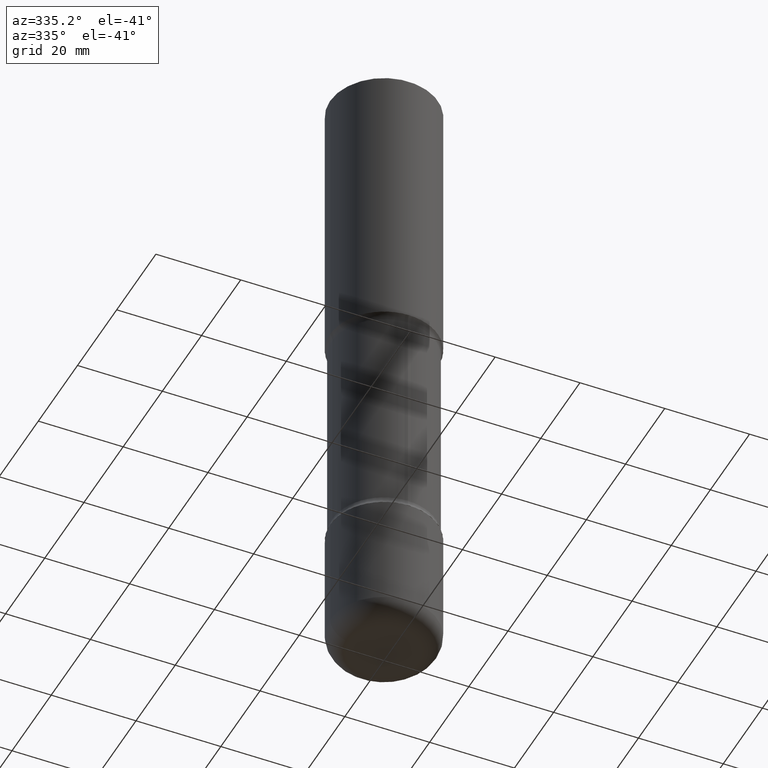
[diagram: clean part render]
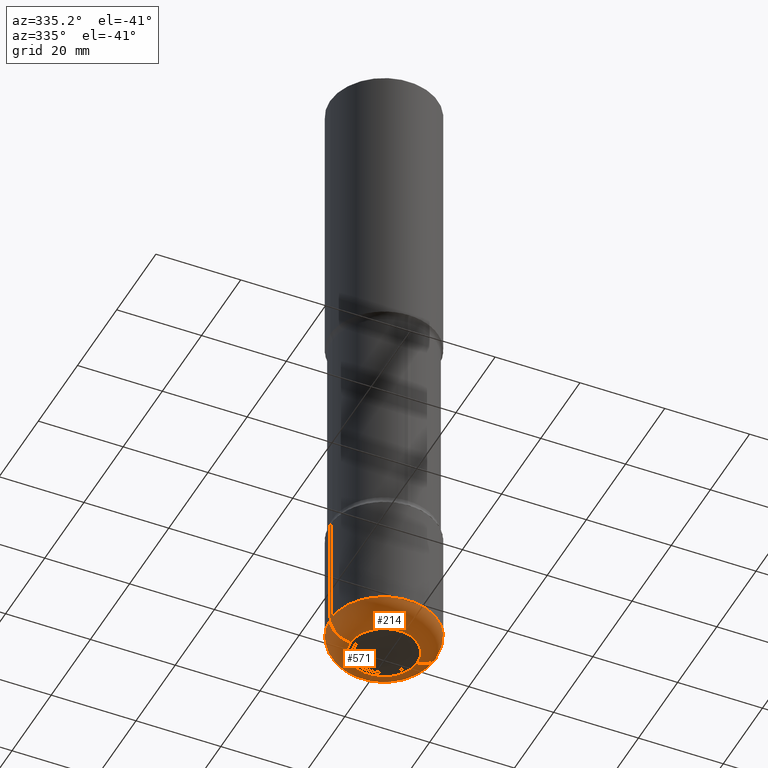
[diagram: same view with one multi-face feature highlighted, each face labeled with its STEP entity id]
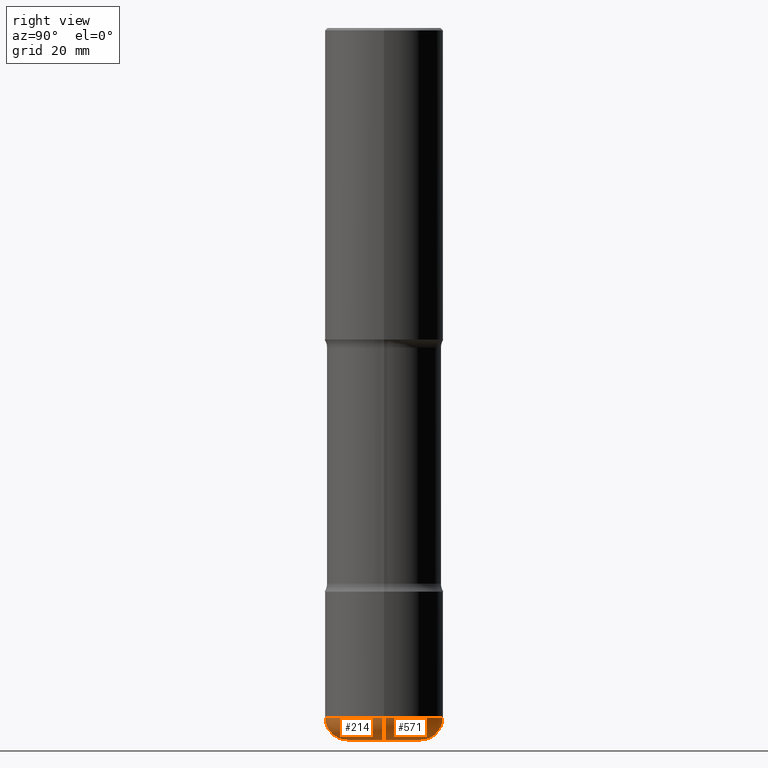
[diagram: same view with one multi-face feature highlighted, each face labeled with its STEP entity id]
A machine part, auxiliary view. The highlighted faces form ONE feature: a constant-radius fillet chain: 2 tangent blend faces with common blend radius 4.826 mm. The faces share edges in the B-rep.
A second angle (right view) of the same feature is appended — it is thin or edge-on in the first view.
Their STEP definitions:
[1] entity #214 (Torus):
#31 = DIRECTION ( 'NONE',  ( 1.000000000000000000, -6.982962677686265133E-15, 4.883557194083112340E-29 ) ) ;
#34 = AXIS2_PLACEMENT_3D ( 'NONE', #156, #81, #83 ) ;
#37 = EDGE_CURVE ( 'NONE', #120, #599, #371, .T. ) ;
#38 = CARTESIAN_POINT ( 'NONE',  ( -0.4999999999999996114, -1.673279289987817833E-14, -5.810000000000000497 ) ) ;
#53 = ORIENTED_EDGE ( 'NONE', *, *, #188, .T. ) ;
#81 = DIRECTION ( 'NONE',  ( -6.982962677686266711E-15, -1.000000000000000000, 3.491481338843145583E-15 ) ) ;
#83 = DIRECTION ( 'NONE',  ( 1.000000000000000000, -6.982962677686265133E-15, 0.000000000000000000 ) ) ;
#102 = CIRCLE ( 'NONE', #34, 0.1899999999999993361 ) ;
#120 = VERTEX_POINT ( 'NONE', #574 ) ;
#128 = VERTEX_POINT ( 'NONE', #691 ) ;
#156 = CARTESIAN_POINT ( 'NONE',  ( 0.3099999999999999978, -2.245022500876142257E-14, -5.810000000000000497 ) ) ;
#161 = FACE_OUTER_BOUND ( 'NONE', #330, .T. ) ;
#164 = CARTESIAN_POINT ( 'NONE',  ( 1.467281283711081734E-28, -2.094888803305886955E-14, -5.999999999999999112 ) ) ;
#169 = DIRECTION ( 'NONE',  ( 7.105427357601001859E-15, 1.000000000000000000, -3.491481338843145583E-15 ) ) ;
#188 = EDGE_CURVE ( 'NONE', #686, #128, #102, .T. ) ;
#194 = EDGE_CURVE ( 'NONE', #120, #686, #712, .T. ) ;
#202 = TOROIDAL_SURFACE ( 'NONE', #269, 0.3099999999999999978, 0.1899999999999993638 ) ;
#214 = ADVANCED_FACE ( 'NONE', ( #161 ), #202, .T. ) ;
#252 = ORIENTED_EDGE ( 'NONE', *, *, #194, .T. ) ;
#269 = AXIS2_PLACEMENT_3D ( 'NONE', #589, #450, #31 ) ;
#330 = EDGE_LOOP ( 'NONE', ( #647, #252, #53, #803 ) ) ;
#357 = AXIS2_PLACEMENT_3D ( 'NONE', #547, #169, #660 ) ;
#371 = CIRCLE ( 'NONE', #357, 0.1899999999999993361 ) ;
#447 = DIRECTION ( 'NONE',  ( 1.000000000000000000, -6.982962677686263555E-15, 0.000000000000000000 ) ) ;
#450 = DIRECTION ( 'NONE',  ( -2.445468806185136597E-29, 3.491481338843145583E-15, 1.000000000000000000 ) ) ;
#457 = DIRECTION ( 'NONE',  ( 1.000000000000000000, -6.982962677686262766E-15, 0.000000000000000000 ) ) ;
#519 = DIRECTION ( 'NONE',  ( -2.445468806185136597E-29, 3.491481338843145583E-15, 1.000000000000000000 ) ) ;
#531 = EDGE_CURVE ( 'NONE', #599, #128, #555, .T. ) ;
#535 = AXIS2_PLACEMENT_3D ( 'NONE', #757, #645, #447 ) ;
#547 = CARTESIAN_POINT ( 'NONE',  ( -0.3099999999999999978, -1.808282409782236831E-14, -5.810000000000000497 ) ) ;
#555 = CIRCLE ( 'NONE', #535, 0.4999999999999999445 ) ;
#574 = CARTESIAN_POINT ( 'NONE',  ( -0.3100000000000000533, -1.773949922604037162E-14, -5.999999999999999112 ) ) ;
#589 = CARTESIAN_POINT ( 'NONE',  ( 1.420817376393564695E-28, -2.028550657867867926E-14, -5.810000000000000497 ) ) ;
#599 = VERTEX_POINT ( 'NONE', #38 ) ;
#637 = AXIS2_PLACEMENT_3D ( 'NONE', #164, #519, #457 ) ;
#645 = DIRECTION ( 'NONE',  ( -2.445468806185136597E-29, 3.491481338843145583E-15, 1.000000000000000000 ) ) ;
#647 = ORIENTED_EDGE ( 'NONE', *, *, #37, .F. ) ;
#660 = DIRECTION ( 'NONE',  ( -1.000000000000000000, 7.105427357601001859E-15, 0.000000000000000000 ) ) ;
#686 = VERTEX_POINT ( 'NONE', #721 ) ;
#691 = CARTESIAN_POINT ( 'NONE',  ( 0.4999999999999996114, -2.377698791752180631E-14, -5.810000000000000497 ) ) ;
#712 = CIRCLE ( 'NONE', #637, 0.3100000000000000533 ) ;
#721 = CARTESIAN_POINT ( 'NONE',  ( 0.3100000000000000533, -2.311360646314161286E-14, -5.999999999999999112 ) ) ;
#757 = CARTESIAN_POINT ( 'NONE',  ( 1.420817376393564695E-28, -2.028550657867867926E-14, -5.810000000000000497 ) ) ;
#803 = ORIENTED_EDGE ( 'NONE', *, *, #531, .F. ) ;
[2] entity #571 (Torus):
#32 = DIRECTION ( 'NONE',  ( -2.445468806185136597E-29, 3.491481338843145583E-15, 1.000000000000000000 ) ) ;
#34 = AXIS2_PLACEMENT_3D ( 'NONE', #156, #81, #83 ) ;
#37 = EDGE_CURVE ( 'NONE', #120, #599, #371, .T. ) ;
#38 = CARTESIAN_POINT ( 'NONE',  ( -0.4999999999999996114, -1.673279289987817833E-14, -5.810000000000000497 ) ) ;
#63 = CIRCLE ( 'NONE', #232, 0.4999999999999999445 ) ;
#81 = DIRECTION ( 'NONE',  ( -6.982962677686266711E-15, -1.000000000000000000, 3.491481338843145583E-15 ) ) ;
#83 = DIRECTION ( 'NONE',  ( 1.000000000000000000, -6.982962677686265133E-15, 0.000000000000000000 ) ) ;
#102 = CIRCLE ( 'NONE', #34, 0.1899999999999993361 ) ;
#120 = VERTEX_POINT ( 'NONE', #574 ) ;
#128 = VERTEX_POINT ( 'NONE', #691 ) ;
#156 = CARTESIAN_POINT ( 'NONE',  ( 0.3099999999999999978, -2.245022500876142257E-14, -5.810000000000000497 ) ) ;
#169 = DIRECTION ( 'NONE',  ( 7.105427357601001859E-15, 1.000000000000000000, -3.491481338843145583E-15 ) ) ;
#171 = CARTESIAN_POINT ( 'NONE',  ( 1.420817376393564695E-28, -2.028550657867867926E-14, -5.810000000000000497 ) ) ;
#188 = EDGE_CURVE ( 'NONE', #686, #128, #102, .T. ) ;
#232 = AXIS2_PLACEMENT_3D ( 'NONE', #343, #32, #588 ) ;
#343 = CARTESIAN_POINT ( 'NONE',  ( 1.420817376393564695E-28, -2.028550657867867926E-14, -5.810000000000000497 ) ) ;
#351 = DIRECTION ( 'NONE',  ( -2.445468806185136597E-29, 3.491481338843145583E-15, 1.000000000000000000 ) ) ;
#356 = TOROIDAL_SURFACE ( 'NONE', #661, 0.3099999999999999978, 0.1899999999999993638 ) ;
#357 = AXIS2_PLACEMENT_3D ( 'NONE', #547, #169, #660 ) ;
#371 = CIRCLE ( 'NONE', #357, 0.1899999999999993361 ) ;
#380 = EDGE_LOOP ( 'NONE', ( #684, #800, #486, #612 ) ) ;
#477 = DIRECTION ( 'NONE',  ( 1.000000000000000000, -6.982962677686262766E-15, 0.000000000000000000 ) ) ;
#484 = CARTESIAN_POINT ( 'NONE',  ( 1.467281283711081734E-28, -2.094888803305886955E-14, -5.999999999999999112 ) ) ;
#486 = ORIENTED_EDGE ( 'NONE', *, *, #556, .F. ) ;
#520 = FACE_OUTER_BOUND ( 'NONE', #380, .T. ) ;
#540 = DIRECTION ( 'NONE',  ( -2.445468806185136597E-29, 3.491481338843145583E-15, 1.000000000000000000 ) ) ;
#547 = CARTESIAN_POINT ( 'NONE',  ( -0.3099999999999999978, -1.808282409782236831E-14, -5.810000000000000497 ) ) ;
#556 = EDGE_CURVE ( 'NONE', #128, #599, #63, .T. ) ;
#571 = ADVANCED_FACE ( 'NONE', ( #520 ), #356, .T. ) ;
#572 = AXIS2_PLACEMENT_3D ( 'NONE', #484, #540, #477 ) ;
#574 = CARTESIAN_POINT ( 'NONE',  ( -0.3100000000000000533, -1.773949922604037162E-14, -5.999999999999999112 ) ) ;
#588 = DIRECTION ( 'NONE',  ( 1.000000000000000000, -6.982962677686263555E-15, 0.000000000000000000 ) ) ;
#599 = VERTEX_POINT ( 'NONE', #38 ) ;
#612 = ORIENTED_EDGE ( 'NONE', *, *, #188, .F. ) ;
#660 = DIRECTION ( 'NONE',  ( -1.000000000000000000, 7.105427357601001859E-15, 0.000000000000000000 ) ) ;
#661 = AXIS2_PLACEMENT_3D ( 'NONE', #171, #351, #665 ) ;
#665 = DIRECTION ( 'NONE',  ( 1.000000000000000000, -6.982962677686265133E-15, 4.883557194083112340E-29 ) ) ;
#684 = ORIENTED_EDGE ( 'NONE', *, *, #761, .T. ) ;
#686 = VERTEX_POINT ( 'NONE', #721 ) ;
#691 = CARTESIAN_POINT ( 'NONE',  ( 0.4999999999999996114, -2.377698791752180631E-14, -5.810000000000000497 ) ) ;
#721 = CARTESIAN_POINT ( 'NONE',  ( 0.3100000000000000533, -2.311360646314161286E-14, -5.999999999999999112 ) ) ;
#750 = CIRCLE ( 'NONE', #572, 0.3100000000000000533 ) ;
#761 = EDGE_CURVE ( 'NONE', #686, #120, #750, .T. ) ;
#800 = ORIENTED_EDGE ( 'NONE', *, *, #37, .T. ) ;